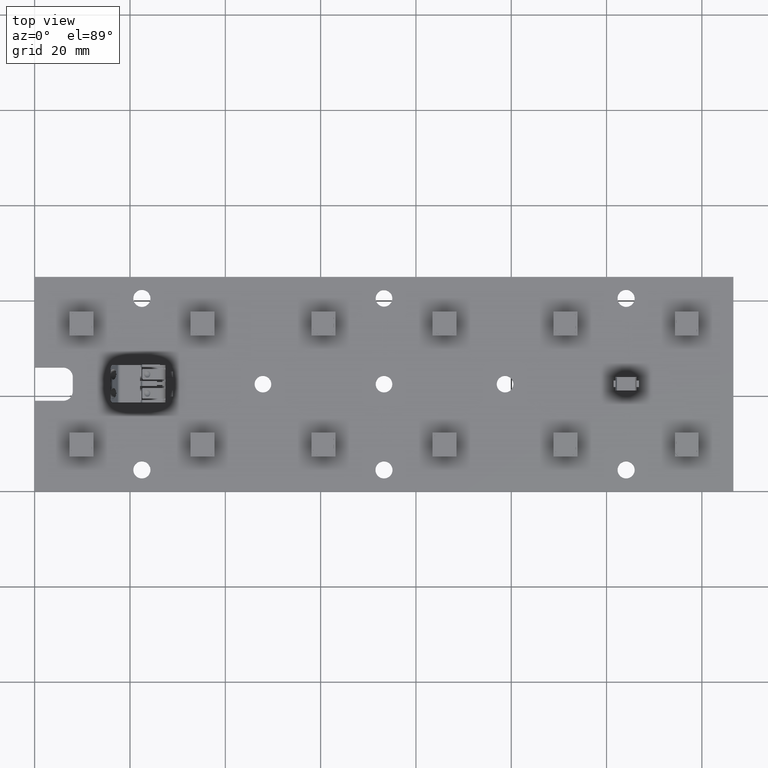
[diagram: clean part render]
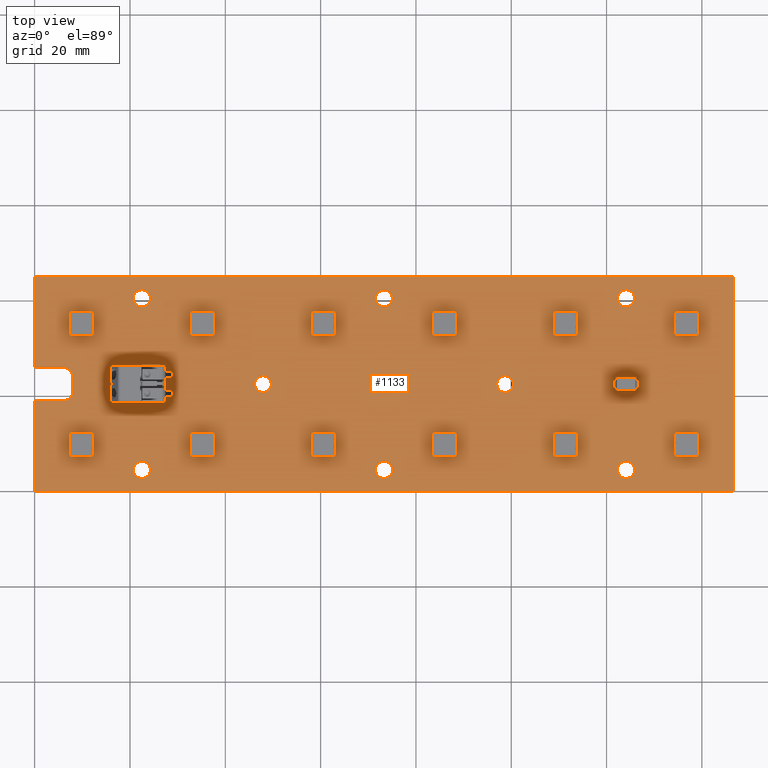
[diagram: same view with one face highlighted and labeled with its STEP entity id]
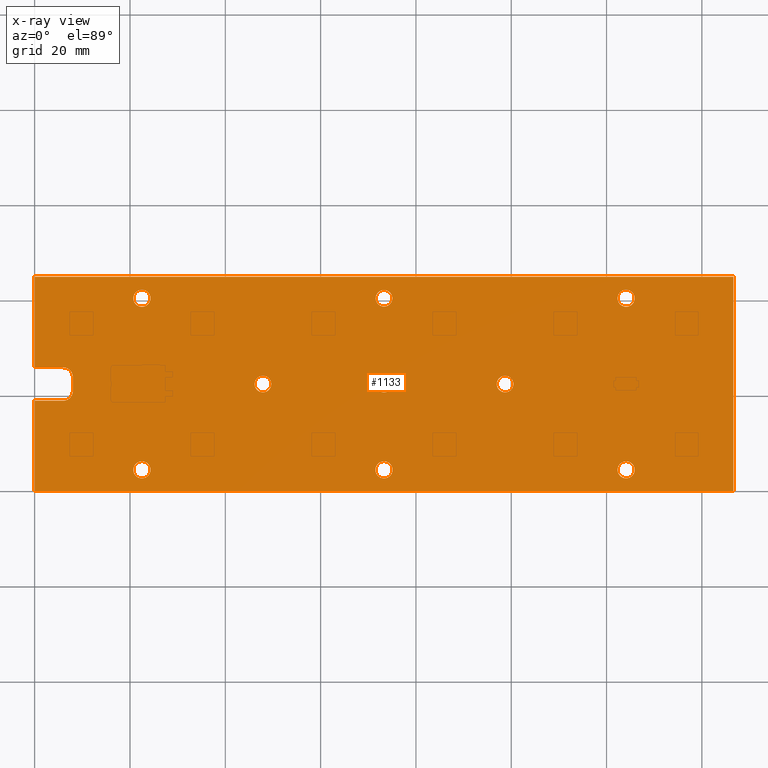
[diagram: x-ray of the same camera — body ghosted, the highlighted face saturated]
A machine part, top view. The second image highlights one B-rep face of the part: STEP entity #1133.
The next image is the same camera in x-ray: the body ghosted, the highlighted face saturated — about 0% of this face is hidden behind the body in this view.
In plain terms, the highlighted planar face has unit normal (0, 0, -1).
Its self-contained STEP definition (entity closure, byte-faithful):
#832=FACE_BOUND('',#1837,.T.);
#833=FACE_BOUND('',#1838,.T.);
#834=FACE_BOUND('',#1839,.T.);
#835=FACE_BOUND('',#1840,.T.);
#836=FACE_BOUND('',#1841,.T.);
#837=FACE_BOUND('',#1842,.T.);
#838=FACE_BOUND('',#1843,.T.);
#839=FACE_BOUND('',#1844,.T.);
#840=FACE_BOUND('',#1845,.T.);
#841=FACE_BOUND('',#1846,.T.);
#946=CIRCLE('',#5803,1.99999850585019);
#948=CIRCLE('',#5807,1.99999850585019);
#951=CIRCLE('',#5812,1.8);
#953=CIRCLE('',#5815,1.75);
#955=CIRCLE('',#5818,1.75);
#957=CIRCLE('',#5821,1.75);
#959=CIRCLE('',#5824,1.8);
#961=CIRCLE('',#5827,1.75);
#963=CIRCLE('',#5830,1.8);
#965=CIRCLE('',#5833,1.8);
#967=CIRCLE('',#5837,1.8);
#1133=ADVANCED_FACE('',(#832,#833,#834,#835,#836,#837,#838,#839,#840,#841),
#1388,.F.);
#1388=PLANE('',#5840);
#1837=EDGE_LOOP('',(#2175,#2176,#2177,#2178,#2179,#2180,#2181,#2182,#2183,
#2184));
#1838=EDGE_LOOP('',(#2185));
#1839=EDGE_LOOP('',(#2186));
#1840=EDGE_LOOP('',(#2187));
#1841=EDGE_LOOP('',(#2188));
#1842=EDGE_LOOP('',(#2189));
#1843=EDGE_LOOP('',(#2190));
#1844=EDGE_LOOP('',(#2191));
#1845=EDGE_LOOP('',(#2192));
#1846=EDGE_LOOP('',(#2193));
#2175=ORIENTED_EDGE('',*,*,#4034,.T.);
#2176=ORIENTED_EDGE('',*,*,#4038,.T.);
#2177=ORIENTED_EDGE('',*,*,#4041,.T.);
#2178=ORIENTED_EDGE('',*,*,#4044,.T.);
#2179=ORIENTED_EDGE('',*,*,#4047,.T.);
#2180=ORIENTED_EDGE('',*,*,#4050,.T.);
#2181=ORIENTED_EDGE('',*,*,#4053,.T.);
#2182=ORIENTED_EDGE('',*,*,#4056,.T.);
#2183=ORIENTED_EDGE('',*,*,#4059,.T.);
#2184=ORIENTED_EDGE('',*,*,#4078,.T.);
#2185=ORIENTED_EDGE('',*,*,#4077,.F.);
#2186=ORIENTED_EDGE('',*,*,#4075,.F.);
#2187=ORIENTED_EDGE('',*,*,#4073,.F.);
#2188=ORIENTED_EDGE('',*,*,#4071,.F.);
#2189=ORIENTED_EDGE('',*,*,#4069,.F.);
#2190=ORIENTED_EDGE('',*,*,#4067,.F.);
#2191=ORIENTED_EDGE('',*,*,#4065,.F.);
#2192=ORIENTED_EDGE('',*,*,#4063,.F.);
#2193=ORIENTED_EDGE('',*,*,#4081,.F.);
#3548=VERTEX_POINT('',#7695);
#3549=VERTEX_POINT('',#7696);
#3552=VERTEX_POINT('',#7704);
#3554=VERTEX_POINT('',#7710);
#3556=VERTEX_POINT('',#7716);
#3558=VERTEX_POINT('',#7722);
#3560=VERTEX_POINT('',#7728);
#3562=VERTEX_POINT('',#7734);
#3564=VERTEX_POINT('',#7740);
#3566=VERTEX_POINT('',#7746);
#3569=VERTEX_POINT('',#7754);
#3571=VERTEX_POINT('',#7759);
#3573=VERTEX_POINT('',#7764);
#3575=VERTEX_POINT('',#7769);
#3577=VERTEX_POINT('',#7774);
#3579=VERTEX_POINT('',#7779);
#3581=VERTEX_POINT('',#7784);
#3583=VERTEX_POINT('',#7789);
#3585=VERTEX_POINT('',#7797);
#4034=EDGE_CURVE('',#3548,#3549,#4759,.T.);
#4038=EDGE_CURVE('',#3549,#3552,#4763,.T.);
#4041=EDGE_CURVE('',#3552,#3554,#4766,.T.);
#4044=EDGE_CURVE('',#3554,#3556,#4769,.T.);
#4047=EDGE_CURVE('',#3556,#3558,#4772,.T.);
#4050=EDGE_CURVE('',#3558,#3560,#946,.T.);
#4053=EDGE_CURVE('',#3560,#3562,#4776,.T.);
#4056=EDGE_CURVE('',#3562,#3564,#948,.T.);
#4059=EDGE_CURVE('',#3564,#3566,#4780,.T.);
#4063=EDGE_CURVE('',#3569,#3569,#951,.T.);
#4065=EDGE_CURVE('',#3571,#3571,#953,.T.);
#4067=EDGE_CURVE('',#3573,#3573,#955,.T.);
#4069=EDGE_CURVE('',#3575,#3575,#957,.T.);
#4071=EDGE_CURVE('',#3577,#3577,#959,.T.);
#4073=EDGE_CURVE('',#3579,#3579,#961,.T.);
#4075=EDGE_CURVE('',#3581,#3581,#963,.T.);
#4077=EDGE_CURVE('',#3583,#3583,#965,.T.);
#4078=EDGE_CURVE('',#3566,#3548,#4783,.T.);
#4081=EDGE_CURVE('',#3585,#3585,#967,.T.);
#4759=LINE('',#7694,#5278);
#4763=LINE('',#7703,#5282);
#4766=LINE('',#7709,#5285);
#4769=LINE('',#7715,#5288);
#4772=LINE('',#7721,#5291);
#4776=LINE('',#7733,#5295);
#4780=LINE('',#7745,#5299);
#4783=LINE('',#7791,#5302);
#5278=VECTOR('',#6258,1.);
#5282=VECTOR('',#6264,1.);
#5285=VECTOR('',#6269,1.);
#5288=VECTOR('',#6274,1.);
#5291=VECTOR('',#6279,1.);
#5295=VECTOR('',#6291,1.);
#5299=VECTOR('',#6303,1.);
#5302=VECTOR('',#6356,1.);
#5803=AXIS2_PLACEMENT_3D('',#7727,#6284,#6285);
#5807=AXIS2_PLACEMENT_3D('',#7739,#6296,#6297);
#5812=AXIS2_PLACEMENT_3D('',#7753,#6310,#6311);
#5815=AXIS2_PLACEMENT_3D('',#7758,#6316,#6317);
#5818=AXIS2_PLACEMENT_3D('',#7763,#6322,#6323);
#5821=AXIS2_PLACEMENT_3D('',#7768,#6328,#6329);
#5824=AXIS2_PLACEMENT_3D('',#7773,#6334,#6335);
#5827=AXIS2_PLACEMENT_3D('',#7778,#6340,#6341);
#5830=AXIS2_PLACEMENT_3D('',#7783,#6346,#6347);
#5833=AXIS2_PLACEMENT_3D('',#7788,#6352,#6353);
#5837=AXIS2_PLACEMENT_3D('',#7796,#6362,#6363);
#5840=AXIS2_PLACEMENT_3D('',#7800,#6368,#6369);
#6258=DIRECTION('',(1.,0.,0.));
#6264=DIRECTION('',(0.,1.,0.));
#6269=DIRECTION('',(-1.,0.,0.));
#6274=DIRECTION('',(0.,-1.,0.));
#6279=DIRECTION('',(1.,0.,0.));
#6284=DIRECTION('',(0.,0.,-1.));
#6285=DIRECTION('',(1.,0.,0.));
#6291=DIRECTION('',(0.,-1.,0.));
#6296=DIRECTION('',(0.,0.,-1.));
#6297=DIRECTION('',(1.,0.,0.));
#6303=DIRECTION('',(-1.,0.,0.));
#6310=DIRECTION('',(0.,0.,1.));
#6311=DIRECTION('',(1.00000000000001,0.,0.));
#6316=DIRECTION('',(0.,0.,1.));
#6317=DIRECTION('',(1.,0.,0.));
#6322=DIRECTION('',(0.,0.,1.));
#6323=DIRECTION('',(1.,0.,0.));
#6328=DIRECTION('',(0.,0.,1.));
#6329=DIRECTION('',(1.,0.,0.));
#6334=DIRECTION('',(0.,0.,1.));
#6335=DIRECTION('',(0.999999999999998,0.,0.));
#6340=DIRECTION('',(0.,0.,1.));
#6341=DIRECTION('',(1.,0.,0.));
#6346=DIRECTION('',(0.,0.,1.));
#6347=DIRECTION('',(1.,0.,0.));
#6352=DIRECTION('',(0.,0.,1.));
#6353=DIRECTION('',(1.,0.,0.));
#6356=DIRECTION('',(0.,-1.,0.));
#6362=DIRECTION('',(0.,0.,1.));
#6363=DIRECTION('',(1.00000000000001,0.,0.));
#6368=DIRECTION('',(0.,0.,-1.));
#6369=DIRECTION('',(-1.,0.,0.));
#7694=CARTESIAN_POINT('',(0.,0.,0.));
#7695=CARTESIAN_POINT('',(0.,0.,0.));
#7696=CARTESIAN_POINT('',(146.6,0.,0.));
#7703=CARTESIAN_POINT('',(146.6,0.,0.));
#7704=CARTESIAN_POINT('',(146.6,45.,0.));
#7709=CARTESIAN_POINT('',(146.6,45.,0.));
#7710=CARTESIAN_POINT('',(0.,45.,0.));
#7715=CARTESIAN_POINT('',(0.,45.,0.));
#7716=CARTESIAN_POINT('',(0.,26.,0.));
#7721=CARTESIAN_POINT('',(0.,26.,0.));
#7722=CARTESIAN_POINT('',(6.,26.,0.));
#7727=CARTESIAN_POINT('',(6.00000149415037,24.0000014941504,0.));
#7728=CARTESIAN_POINT('',(8.,24.,0.));
#7733=CARTESIAN_POINT('',(8.,24.,0.));
#7734=CARTESIAN_POINT('',(8.,21.,0.));
#7739=CARTESIAN_POINT('',(6.00000149415037,20.9999985058496,0.));
#7740=CARTESIAN_POINT('',(6.,19.,0.));
#7745=CARTESIAN_POINT('',(6.,19.,0.));
#7746=CARTESIAN_POINT('',(0.,19.,0.));
#7753=CARTESIAN_POINT('',(124.1,4.5,0.));
#7754=CARTESIAN_POINT('',(125.9,4.5,0.));
#7758=CARTESIAN_POINT('',(98.7,22.5,0.));
#7759=CARTESIAN_POINT('',(100.45,22.5,0.));
#7763=CARTESIAN_POINT('',(73.3,40.5,0.));
#7764=CARTESIAN_POINT('',(75.05,40.5,0.));
#7768=CARTESIAN_POINT('',(73.3,22.5,0.));
#7769=CARTESIAN_POINT('',(75.05,22.5,0.));
#7773=CARTESIAN_POINT('',(73.3,4.5,0.));
#7774=CARTESIAN_POINT('',(75.1,4.5,0.));
#7778=CARTESIAN_POINT('',(47.9,22.5,0.));
#7779=CARTESIAN_POINT('',(49.65,22.5,0.));
#7783=CARTESIAN_POINT('',(22.5,40.5,0.));
#7784=CARTESIAN_POINT('',(24.3,40.5,0.));
#7788=CARTESIAN_POINT('',(22.5,4.5,0.));
#7789=CARTESIAN_POINT('',(24.3,4.5,0.));
#7791=CARTESIAN_POINT('',(0.,19.,0.));
#7796=CARTESIAN_POINT('',(124.1,40.5,0.));
#7797=CARTESIAN_POINT('',(125.9,40.5,0.));
#7800=CARTESIAN_POINT('',(6.00000149415037,24.0000014941504,0.));